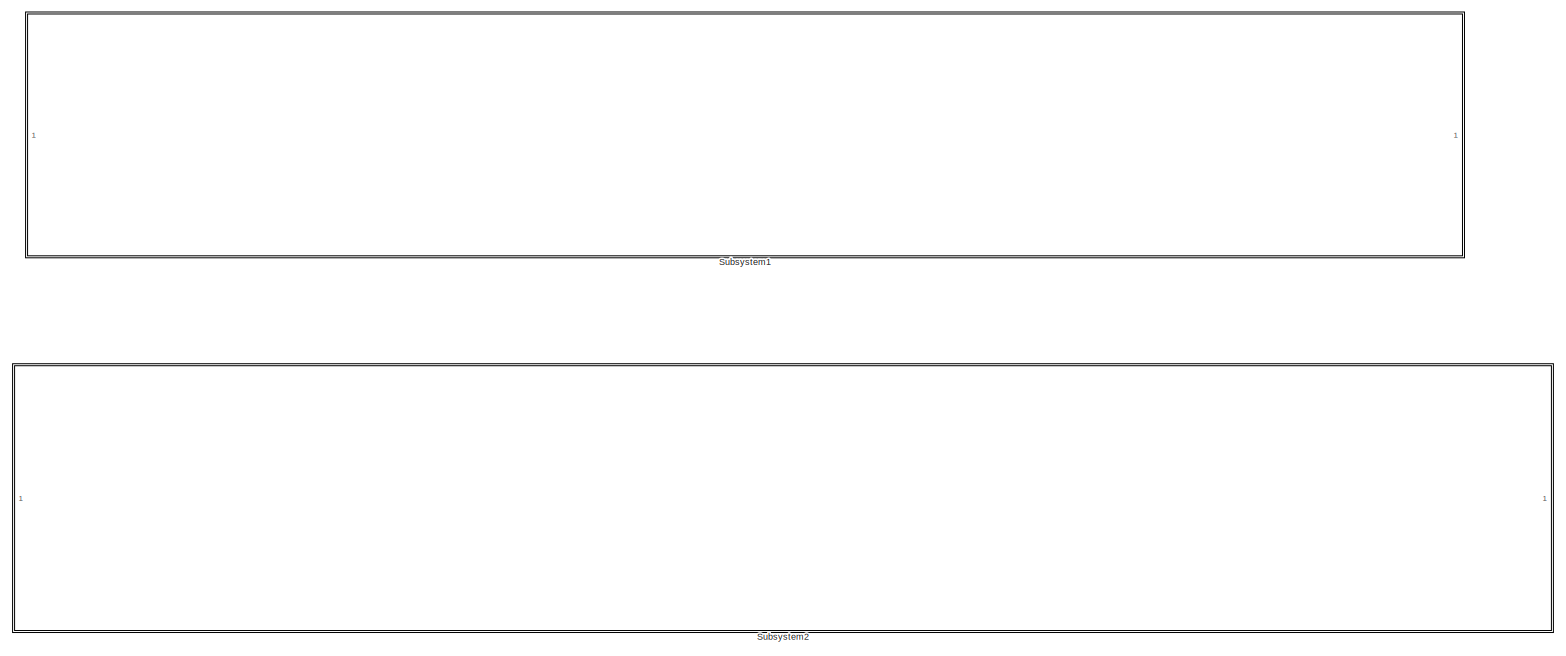
[diagram: root canvas - part 1/1, most of the canvas]
MODEL slx_a849cdf1c400
KIND model
CONFIG AbsTol = auto
CONFIG EnableMultiTasking = off
CONFIG FixedStep = auto
CONFIG MaxStep = auto
CONFIG MinStep = auto
CONFIG RelTol = 1e-3
CONFIG SampleTimeConstraint = Unconstrained
CONFIG SolverName = VariableStepAuto
CONFIG StartTime = 0.0
CONFIG StopTime = inf
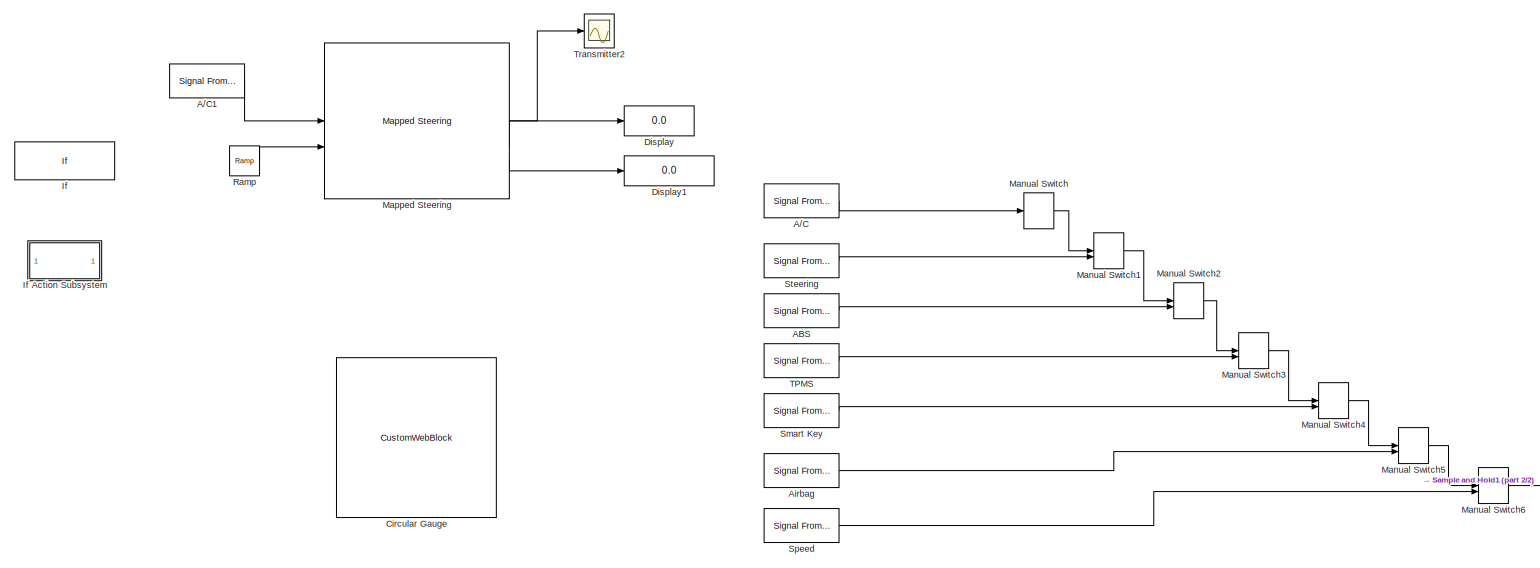
[diagram: Subsystem1 - part 1/2, left side, full height]
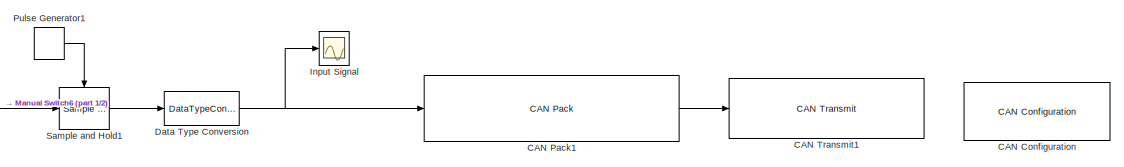
[diagram: Subsystem1 - part 2/2, bottom right region]
BLOCK [SubSystem] Subsystem1
BLOCK [Reference] Subsystem1/A//C  REF=dspsrcs4/Signal From
Workspace
  Priority = 1
  SourceBlock = dspsrcs4/Signal From\nWorkspace
  SourceType = Signal From Workspace
BLOCK [Reference] Subsystem1/A//C1  REF=dspsrcs4/Signal From
Workspace
  Priority = 1
  SourceBlock = dspsrcs4/Signal From\nWorkspace
  SourceType = Signal From Workspace
BLOCK [Reference] Subsystem1/ABS  REF=dspsrcs4/Signal From
Workspace
  Priority = 3
  SourceBlock = dspsrcs4/Signal From\nWorkspace
  SourceType = Signal From Workspace
BLOCK [Reference] Subsystem1/Airbag  REF=dspsrcs4/Signal From
Workspace
  Priority = 6
  SourceBlock = dspsrcs4/Signal From\nWorkspace
  SourceType = Signal From Workspace
BLOCK [Reference] Subsystem1/CAN Configuration  REF=canlib/CAN Configuration
  SourceBlock = canlib/CAN Configuration
  SourceType = CAN Configuration
BLOCK [Reference] Subsystem1/CAN Pack1  REF=canmsglib/CAN Pack
  LibrarySourceBlock = canlib/CAN Pack
  SourceBlock = canmsglib/CAN Pack
  SourceType = CAN Pack
BLOCK [Reference] Subsystem1/CAN Transmit1  REF=canlib/CAN Transmit
  SourceBlock = canlib/CAN Transmit
  SourceType = CAN Transmit
BLOCK [CustomWebBlock] Subsystem1/Circular Gauge
  Configuration = {"components":[{"name":"CircularScaleComponent","settings":{"bounds":{"max":100,"min":0,"tickInterval":"auto"},"direction":"cw","flipLimits":0,"innerRadius":0.75,"internalTickHeightScaleFactor":1,"labelColor":[255,255,200],"labelFont":{"font":"Arial","fontSize":12},"labelRadius":0.528,"labelTransparency":1,"minorTickHeightScaleFactor":0.2,"needleImage":{"size":[200,50],"src":"data:image\/svg+xml;b...<+12640ch>
  LabelPosition = Hide
  ShowInitialText = on
BLOCK [DataTypeConversion] Subsystem1/Data Type Conversion
  OutDataTypeStr = uint8
  RndMeth = Floor
  SaturateOnIntegerOverflow = off
BLOCK [Display] Subsystem1/Display
  Decimation = 1
BLOCK [Display] Subsystem1/Display1
  Decimation = 1
BLOCK [If] Subsystem1/If
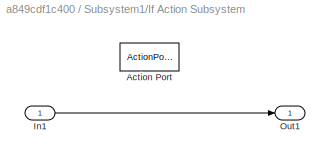
BLOCK [SubSystem] Subsystem1/If Action Subsystem
  TreatAsAtomicUnit = on
BLOCK [ActionPort] Subsystem1/If Action Subsystem/Action Port
BLOCK [Inport] Subsystem1/If Action Subsystem/In1
BLOCK [Outport] Subsystem1/If Action Subsystem/Out1
BLOCK [Scope] Subsystem1/Input Signal
  Floating = off
  NumInputPorts = 1
  ScopeSpecificationString = Simulink.scopes.TimeScopeBlockCfg('CurrentConfiguration', extmgr.ConfigurationSet(extmgr.Configuration('Core','General UI',true),extmgr.Configuration('Core','Source UI',true),extmgr.Configuration('Sources','WiredSimulink',true,'DataLoggingVariableName','ScopeData2','DataLogging',true),extmgr.Configuration('Visuals','Time Domain',true,'SerializedDisplays',{struct('MinYLimReal','-0.25','MaxYLimReal'...<+1566ch>
BLOCK [ManualSwitch] Subsystem1/Manual Switch
BLOCK [ManualSwitch] Subsystem1/Manual Switch1
  CurrentSetting = 0
BLOCK [ManualSwitch] Subsystem1/Manual Switch2
BLOCK [ManualSwitch] Subsystem1/Manual Switch3
BLOCK [ManualSwitch] Subsystem1/Manual Switch4
BLOCK [ManualSwitch] Subsystem1/Manual Switch5
BLOCK [ManualSwitch] Subsystem1/Manual Switch6
BLOCK [Reference] Subsystem1/Mapped Steering  REF=vehdynlibsteering/Mapped Steering
  SourceBlock = vehdynlibsteering/Mapped Steering
  SourceType = Mapped Steering
BLOCK [DiscretePulseGenerator] Subsystem1/Pulse Generator1
  Period = 5
  VectorParams1D = off
BLOCK [Reference] Subsystem1/Ramp  REF=simulink/Sources/Ramp
  SourceBlock = simulink/Sources/Ramp
  SourceType = Ramp
BLOCK [Reference] Subsystem1/Sample and Hold1  REF=dspsigops/Sample
and Hold
  SourceBlock = dspsigops/Sample\nand Hold
  SourceType = Sample and Hold
BLOCK [Reference] Subsystem1/Smart Key  REF=dspsrcs4/Signal From
Workspace
  Priority = 5
  SourceBlock = dspsrcs4/Signal From\nWorkspace
  SourceType = Signal From Workspace
BLOCK [Reference] Subsystem1/Speed  REF=dspsrcs4/Signal From
Workspace
  Priority = 7
  SourceBlock = dspsrcs4/Signal From\nWorkspace
  SourceType = Signal From Workspace
BLOCK [Reference] Subsystem1/Steering  REF=dspsrcs4/Signal From
Workspace
  Priority = 2
  SourceBlock = dspsrcs4/Signal From\nWorkspace
  SourceType = Signal From Workspace
BLOCK [Reference] Subsystem1/TPMS  REF=dspsrcs4/Signal From
Workspace
  Priority = 4
  SourceBlock = dspsrcs4/Signal From\nWorkspace
  SourceType = Signal From Workspace
BLOCK [Scope] Subsystem1/Transmitter2
  Floating = off
  NumInputPorts = 1
  ScopeSpecificationString = Simulink.scopes.TimeScopeBlockCfg('CurrentConfiguration', extmgr.ConfigurationSet(extmgr.Configuration('Core','General UI',true),extmgr.Configuration('Core','Source UI',true),extmgr.Configuration('Sources','WiredSimulink',true,'DataLoggingVariableName','ScopeData4','DataLogging',true),extmgr.Configuration('Visuals','Time Domain',true,'SerializedDisplays',{struct('MinYLimReal','-0.29089','MaxYLimRe...<+1611ch>
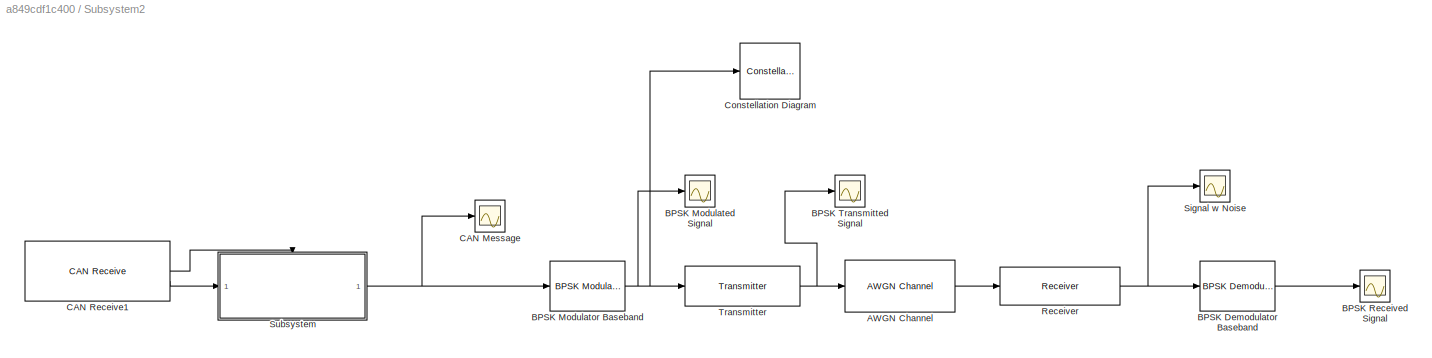
BLOCK [SubSystem] Subsystem2
BLOCK [Reference] Subsystem2/AWGN Channel  REF=commchan3/AWGN
Channel
  SourceBlock = commchan3/AWGN\nChannel
  SourceType = AWGN Channel
BLOCK [Reference] Subsystem2/BPSK Demodulator Baseband  REF=commdigbbndpm3/BPSK
Demodulator
Baseband
  SourceBlock = commdigbbndpm3/BPSK\nDemodulator\nBaseband
  SourceType = BPSK Demodulator Baseband
BLOCK [Scope] Subsystem2/BPSK Modulated Signal
  Floating = off
  NumInputPorts = 1
  ScopeSpecificationString = Simulink.scopes.TimeScopeBlockCfg('CurrentConfiguration', extmgr.ConfigurationSet(extmgr.Configuration('Core','General UI',true),extmgr.Configuration('Core','Source UI',true),extmgr.Configuration('Sources','WiredSimulink',true,'DataLoggingVariableName','ScopeData1'),extmgr.Configuration('Visuals','Time Domain',true,'SerializedDisplays',{struct('MinYLimReal','-1.25','MaxYLimReal','1.25','YLabelReal...<+2094ch>
BLOCK [Reference] Subsystem2/BPSK Modulator Baseband  REF=commdigbbndpm3/BPSK
Modulator
Baseband
  SourceBlock = commdigbbndpm3/BPSK\nModulator\nBaseband
  SourceType = BPSK Modulator Baseband
BLOCK [Scope] Subsystem2/BPSK Received Signal
  Floating = off
  NumInputPorts = 1
  ScopeSpecificationString = Simulink.scopes.TimeScopeBlockCfg('CurrentConfiguration', extmgr.ConfigurationSet(extmgr.Configuration('Core','General UI',true),extmgr.Configuration('Core','Source UI',true),extmgr.Configuration('Sources','WiredSimulink',true,'DataLoggingVariableName','ScopeData2'),extmgr.Configuration('Visuals','Time Domain',true,'SerializedDisplays',{struct('MinYLimReal','-0.125','MaxYLimReal','1.125','YLabelRe...<+1769ch>
BLOCK [Scope] Subsystem2/BPSK Transmitted Signal
  Floating = off
  NumInputPorts = 1
  ScopeSpecificationString = Simulink.scopes.TimeScopeBlockCfg('CurrentConfiguration', extmgr.ConfigurationSet(extmgr.Configuration('Core','General UI',true),extmgr.Configuration('Core','Source UI',true),extmgr.Configuration('Sources','WiredSimulink',true),extmgr.Configuration('Visuals','Time Domain',true,'SerializedDisplays',{struct('MinYLimReal','-883.88348','MaxYLimReal','883.88348','YLabelReal','','MinYLimMag',' 0.00000',...<+1872ch>
BLOCK [Scope] Subsystem2/CAN Message
  Floating = off
  NumInputPorts = 1
  ScopeSpecificationString = Simulink.scopes.TimeScopeBlockCfg('CurrentConfiguration', extmgr.ConfigurationSet(extmgr.Configuration('Core','General UI',true),extmgr.Configuration('Core','Source UI',true),extmgr.Configuration('Sources','WiredSimulink',true,'DataLoggingVariableName','ScopeData1'),extmgr.Configuration('Visuals','Time Domain',true,'SerializedDisplays',{struct('MinYLimReal','-0.125','MaxYLimReal','1.125','YLabelRe...<+1641ch>
BLOCK [Reference] Subsystem2/CAN Receive1  REF=canlib/CAN Receive
  SourceBlock = canlib/CAN Receive
  SourceType = CAN Receive
BLOCK [ConstellationDiagram] Subsystem2/Constellation Diagram
  EnableMeasurements = on
  GraphicalSettings = {"Style":{"BackgroundColor":[0.12941176470588237,0.12941176470588237,0.12941176470588237],"AxesColor":[0.07058823529411765,0.07058823529411765,0.07058823529411765],"LabelsColor":[0.8509803921568627,0.8509803921568627,0.8509803921568627],"LineStyle":["-","NONE"],"LineColor":[[1,0.9098039215686274,0.39215686274509803],[1,0,0]],"LineWidth":[1,1],"Marker":[".","+"],"IsRefLine":[false,true],"FontSize":...<+219ch>
  ReferenceConstellation = BPSK
  ScopeFrameLocation = window
  ShowTrajectory = on
  Visible = on
  WasSavedAsWebScope = on
  WindowPosition = [1712.000000,211.000000,600.000000,600.000000,]
BLOCK [Reference] Subsystem2/Receiver  REF=phasedtxrxlib/Receiver
  SourceBlock = phasedtxrxlib/Receiver
  SourceType = phased.internal.SimulinkReceiver
BLOCK [Scope] Subsystem2/Signal w Noise
  Floating = off
  NumInputPorts = 1
  ScopeSpecificationString = Simulink.scopes.TimeScopeBlockCfg('CurrentConfiguration', extmgr.ConfigurationSet(extmgr.Configuration('Core','General UI',true),extmgr.Configuration('Core','Source UI',true),extmgr.Configuration('Sources','WiredSimulink',true,'DataLoggingVariableName','ScopeData3'),extmgr.Configuration('Visuals','Time Domain',true,'SerializedDisplays',{struct('MinYLimReal','-7160.56007','MaxYLimReal','7162.53943'...<+1868ch>
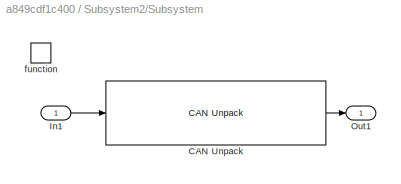
BLOCK [SubSystem] Subsystem2/Subsystem
BLOCK [Reference] Subsystem2/Subsystem/CAN Unpack  REF=canmsglib/CAN Unpack
  LibrarySourceBlock = canlib/CAN Unpack
  SourceBlock = canmsglib/CAN Unpack
  SourceType = CAN Unpack
BLOCK [Inport] Subsystem2/Subsystem/In1
BLOCK [Outport] Subsystem2/Subsystem/Out1
BLOCK [TriggerPort] Subsystem2/Subsystem/function
  StatesWhenEnabling = held
  TriggerType = function-call
  VariantControl = (inherit)
BLOCK [Reference] Subsystem2/Transmitter  REF=phasedtxrxlib/Transmitter
  SourceBlock = phasedtxrxlib/Transmitter
  SourceType = phased.internal.SimulinkTransmitter
LINE Subsystem1/A//C1:1 -> Subsystem1/Mapped Steering:1
LINE Subsystem1/A//C:1 -> Subsystem1/Manual Switch:1
LINE Subsystem1/ABS:1 -> Subsystem1/Manual Switch2:2
LINE Subsystem1/Airbag:1 -> Subsystem1/Manual Switch5:2
LINE Subsystem1/CAN Pack1:1 -> Subsystem1/CAN Transmit1:1
NET Subsystem1/Data Type Conversion:1 -> Subsystem1/CAN Pack1:1, Subsystem1/Input Signal:1
LINE Subsystem1/If Action Subsystem/In1:1 -> Subsystem1/If Action Subsystem/Out1:1
LINE Subsystem1/Manual Switch1:1 -> Subsystem1/Manual Switch2:1
LINE Subsystem1/Manual Switch2:1 -> Subsystem1/Manual Switch3:1
LINE Subsystem1/Manual Switch3:1 -> Subsystem1/Manual Switch4:1
LINE Subsystem1/Manual Switch4:1 -> Subsystem1/Manual Switch5:1
LINE Subsystem1/Manual Switch5:1 -> Subsystem1/Manual Switch6:1
LINE Subsystem1/Manual Switch6:1 -> Subsystem1/Sample and Hold1:1
LINE Subsystem1/Manual Switch:1 -> Subsystem1/Manual Switch1:1
LINE Subsystem1/Mapped Steering:1 -> Subsystem1/Transmitter2:1
LINE Subsystem1/Mapped Steering:2 -> Subsystem1/Display:1
LINE Subsystem1/Mapped Steering:3 -> Subsystem1/Display1:1
LINE Subsystem1/Pulse Generator1:1 -> Subsystem1/Sample and Hold1:trigger
LINE Subsystem1/Ramp:1 -> Subsystem1/Mapped Steering:2
LINE Subsystem1/Sample and Hold1:1 -> Subsystem1/Data Type Conversion:1
LINE Subsystem1/Smart Key:1 -> Subsystem1/Manual Switch4:2
LINE Subsystem1/Speed:1 -> Subsystem1/Manual Switch6:2
LINE Subsystem1/Steering:1 -> Subsystem1/Manual Switch1:2
LINE Subsystem1/TPMS:1 -> Subsystem1/Manual Switch3:2
LINE Subsystem2/AWGN Channel:1 -> Subsystem2/Receiver:1
LINE Subsystem2/BPSK Demodulator Baseband:1 -> Subsystem2/BPSK Received Signal:1
NET Subsystem2/BPSK Modulator Baseband:1 -> Subsystem2/BPSK Modulated Signal:1, Subsystem2/Constellation Diagram:1, Subsystem2/Transmitter:1
LINE Subsystem2/CAN Receive1:1 -> Subsystem2/Subsystem:trigger
LINE Subsystem2/CAN Receive1:2 -> Subsystem2/Subsystem:1
NET Subsystem2/Receiver:1 -> Subsystem2/BPSK Demodulator Baseband:1, Subsystem2/Signal w Noise:1
LINE Subsystem2/Subsystem/CAN Unpack:1 -> Subsystem2/Subsystem/Out1:1
LINE Subsystem2/Subsystem/In1:1 -> Subsystem2/Subsystem/CAN Unpack:1
NET Subsystem2/Subsystem:1 -> Subsystem2/BPSK Modulator Baseband:1, Subsystem2/CAN Message:1
NET Subsystem2/Transmitter:1 -> Subsystem2/AWGN Channel:1, Subsystem2/BPSK Transmitted Signal:1
note: NET lines group one-source signal fan-out (src -> all destinations, sorted); 1:1 wires keep LINE
